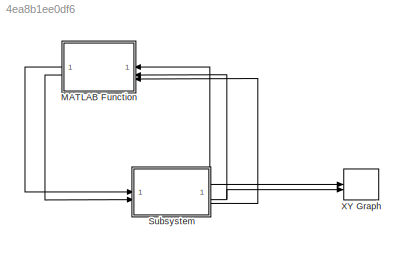
MODEL slx_4ea8b1ee0df6
KIND model
CONFIG AbsTol = auto
CONFIG EnableMultiTasking = off
CONFIG FixedStep = auto
CONFIG MaxStep = auto
CONFIG MinStep = auto
CONFIG RelTol = 1e-3
CONFIG SampleTimeConstraint = Unconstrained
CONFIG SolverName = VariableStepAuto
CONFIG StartTime = 0.0
CONFIG StopTime = 10
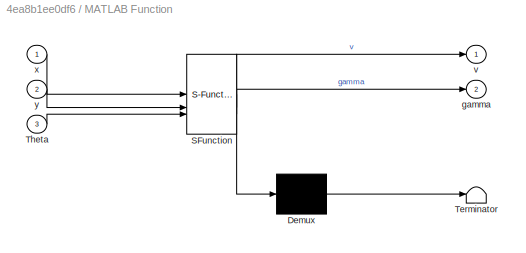
BLOCK [SubSystem] MATLAB Function
  ErrorFcn = Stateflow.Translate.translate
  LibrarySourceBlock = simulink/User-Defined\nFunctions/MATLAB Function
  PermitHierarchicalResolution = ExplicitOnly
  SFBlockType = MATLAB Function
  TreatAsAtomicUnit = on
BLOCK [Demux] MATLAB Function/ Demux 
  Outputs = 1
BLOCK [S-Function] MATLAB Function/ SFunction 
  EnableBusSupport = on
  FunctionName = sf_sfun
  PortCounts = [3 3]
  SFcnIsStateOwnerBlock = off
  SFunctionDeploymentMode = off
  Tag = Stateflow S-Function 1
BLOCK [Terminator] MATLAB Function/ Terminator 
BLOCK [Inport] MATLAB Function/Theta
  Port = 3
BLOCK [Outport] MATLAB Function/gamma
  Port = 2
BLOCK [Outport] MATLAB Function/v
BLOCK [Inport] MATLAB Function/x
BLOCK [Inport] MATLAB Function/y
  Port = 2
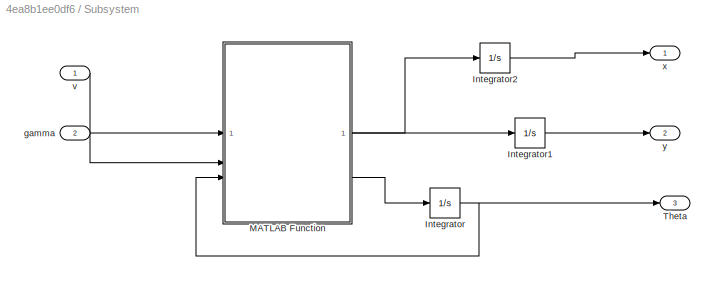
BLOCK [SubSystem] Subsystem
BLOCK [Integrator] Subsystem/Integrator
  InitialCondition = pi/2
BLOCK [Integrator] Subsystem/Integrator1
BLOCK [Integrator] Subsystem/Integrator2
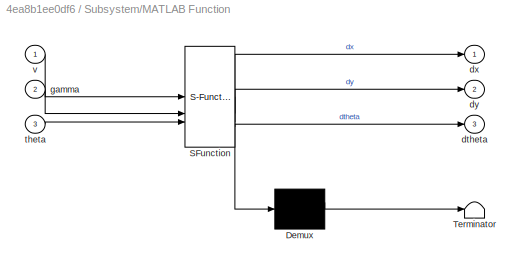
BLOCK [SubSystem] Subsystem/MATLAB Function
  ErrorFcn = Stateflow.Translate.translate
  LibrarySourceBlock = simulink/User-Defined\nFunctions/MATLAB Function
  PermitHierarchicalResolution = ExplicitOnly
  SFBlockType = MATLAB Function
  TreatAsAtomicUnit = on
BLOCK [Demux] Subsystem/MATLAB Function/ Demux 
  Outputs = 1
BLOCK [S-Function] Subsystem/MATLAB Function/ SFunction 
  EnableBusSupport = on
  FunctionName = sf_sfun
  PortCounts = [3 4]
  SFcnIsStateOwnerBlock = off
  SFunctionDeploymentMode = off
  Tag = Stateflow S-Function 2
BLOCK [Terminator] Subsystem/MATLAB Function/ Terminator 
BLOCK [Outport] Subsystem/MATLAB Function/dtheta
  Port = 3
BLOCK [Outport] Subsystem/MATLAB Function/dx
BLOCK [Outport] Subsystem/MATLAB Function/dy
  Port = 2
BLOCK [Inport] Subsystem/MATLAB Function/gamma
  Port = 2
BLOCK [Inport] Subsystem/MATLAB Function/theta
  Port = 3
BLOCK [Inport] Subsystem/MATLAB Function/v
BLOCK [Outport] Subsystem/Theta
  Port = 3
BLOCK [Inport] Subsystem/gamma
  Port = 2
BLOCK [Inport] Subsystem/v
BLOCK [Outport] Subsystem/x
BLOCK [Outport] Subsystem/y
  Port = 2
BLOCK [Record] XY Graph
  CompatibilityTag = XY
  FileSettingsInternal = {"entries":[{"content":{"excelSettings":{"content":{},"type":"Streamout.ExcelSettings"}},"type":"Streamout.FileSettingStorage","uuid":""}],"packageUris":["http:\/\/schema.mathworks.com\/mf0\/streamout_blocks\/R2020a"],"version":"1.0"}
  Layout = [1 1]
  SignalsInternal = {"entries":[{"content":{"signals":[{"content":{"blockPath":[],"dimensions":[1],"domain":"","lineColor":"#a2142f","plots":[1],"port":1,"sid":[""],"signalID":1247,"signalName":"Subsystem:1"},"type":"RecordBlkView.Signal","uuid":""},{"content":{"blockPath":[],"dimensions":[1],"domain":"","lineColor":"#139fff","plots":[1],"port":2,"sid":[""],"signalID":1251,"signalName":"Subsystem:2"},"type":"RecordBl...<+170ch>
  VisualizationBindings = {"xyplotplugin":{"info":[{"series":[],"subplotID":1}]}}
LINE MATLAB Function:1 -> Subsystem:1
LINE MATLAB Function:2 -> Subsystem:2
LINE Subsystem/Integrator1:1 -> Subsystem/y:1
LINE Subsystem/Integrator2:1 -> Subsystem/x:1
NET Subsystem/Integrator:1 -> Subsystem/MATLAB Function:3, Subsystem/Theta:1
LINE Subsystem/MATLAB Function:1 -> Subsystem/Integrator2:1
LINE Subsystem/MATLAB Function:2 -> Subsystem/Integrator1:1
LINE Subsystem/MATLAB Function:3 -> Subsystem/Integrator:1
LINE Subsystem/gamma:1 -> Subsystem/MATLAB Function:2
LINE Subsystem/v:1 -> Subsystem/MATLAB Function:1
NET Subsystem:1 -> MATLAB Function:1, XY Graph:1
NET Subsystem:2 -> MATLAB Function:2, XY Graph:2
LINE Subsystem:3 -> MATLAB Function:3
note: NET lines group one-source signal fan-out (src -> all destinations, sorted); 1:1 wires keep LINE
CHART MATLAB Function states=1 transitions=1
  STATE_LABEL 'eML_blk_kernel()'
  STATE_LABEL 'SCRIPT:\nfunction [v, gamma] = fcn(x, y, Theta)\n    % Desired position\n    x_d = 5;\n    y_d = 3;\n    \n    % Gain for velocity\n    Kv = 0.5;\n    \n    % Gain for steering angle\n    Kh = 1;\n    \n    % Calculate the distance to the desired position\n    distance = sqrt((x_d - x)^2 + (y_d - y)^2);\n    \n    % Calculate the velocity input\n    v = Kv * distance;\n    \n    % Calculate the desired angle using ...<+176ch>'
CHART Subsystem/MATLAB Function states=1 transitions=1
  STATE_LABEL 'eML_blk_kernel()'
  STATE_LABEL 'SCRIPT:\nfunction [dx, dy, dtheta] = fcn(v, gamma, theta)\n    % FCN calculates the change in position and orientation of a robot\n    % given its velocity, steering angle, and current orientation.\n    %\n    % Inputs:\n    %   v      - Velocity of the robot\n    %   gamma  - Steering angle of the robot (in radians)\n    %   theta  - Current orientation (heading angle) of the robot (in radians)\n    %\n   ...<+487ch>'
CHART  states=0 transitions=0
CHART  states=0 transitions=0
